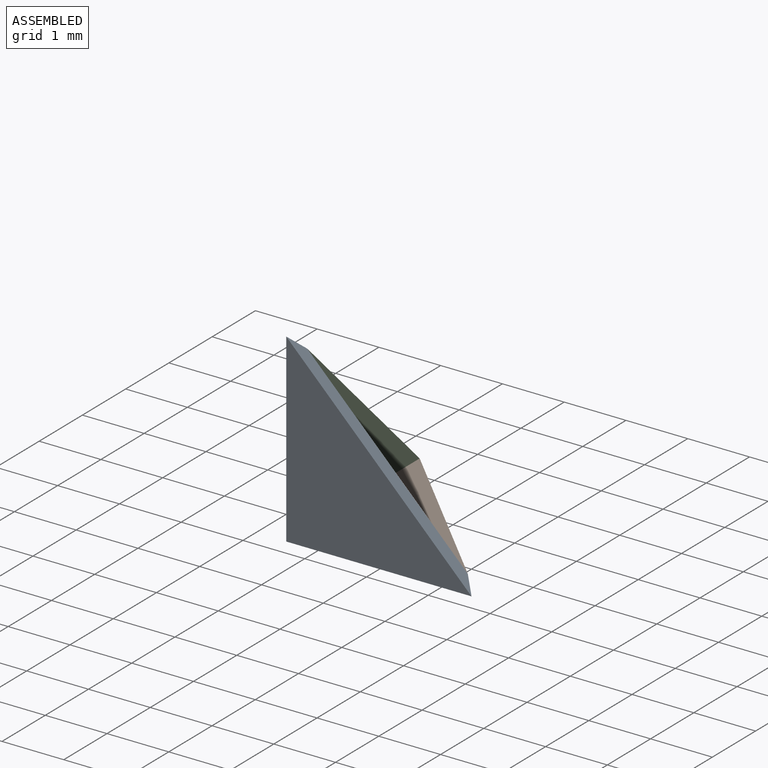
[diagram: assembled view]
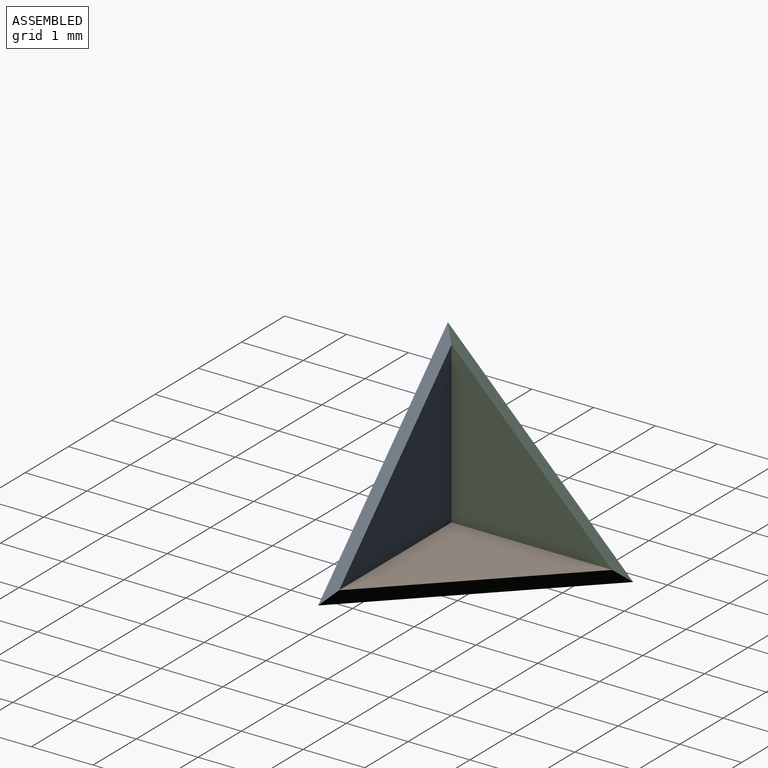
[diagram: assembled view, second angle]
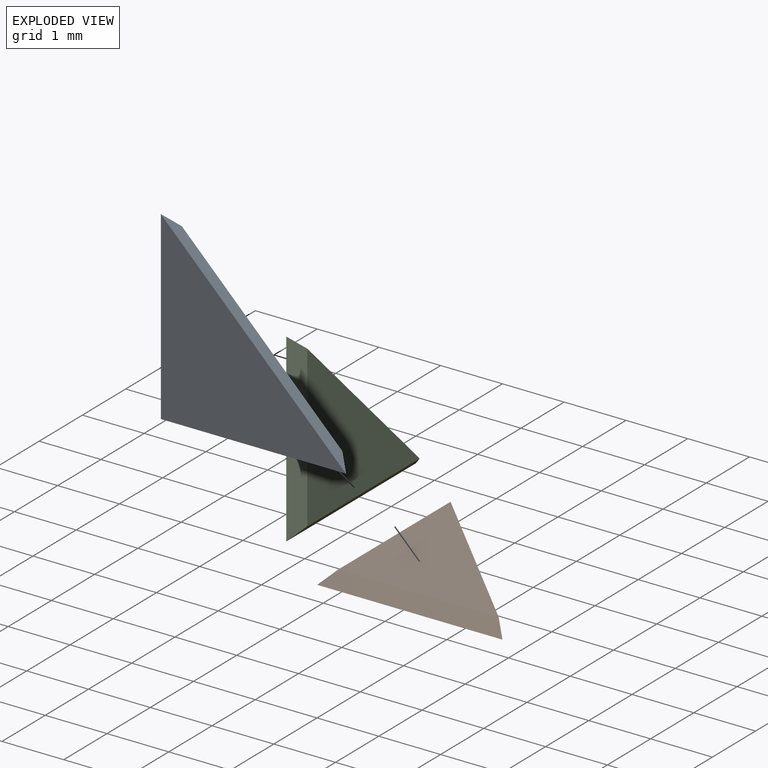
[diagram: exploded view]
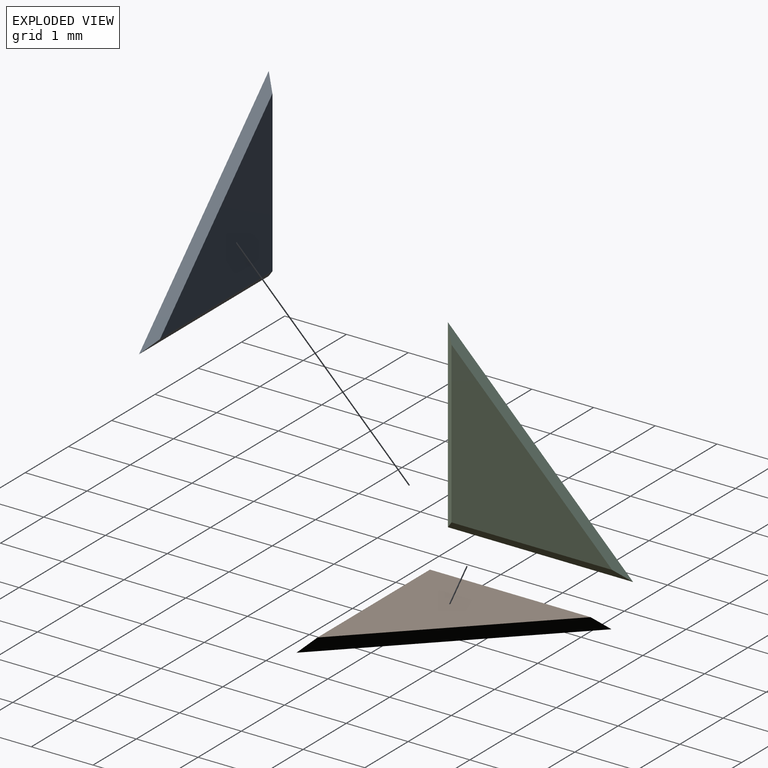
[diagram: exploded view, second angle]
ASSEMBLY  parts=3 mates=2
PART A: 5 faces, bbox 3x3x0.2 mm
  f0: plane 3x3mm, normal (0.71,0.71,0), area 0.8mm2, adj f1,f2,f3,f4
  f1: plane 2.6x2.6mm, normal (0,0,1), area 3.4mm2, adj f0,f3,f4
  f2: plane 3x3mm, normal (0,0,-1), area 4.5mm2, adj f0,f3,f4
  f3: plane 3x0.2mm, normal (0,-0.71,0.71), area 0.8mm2, adj f0,f1,f2,f4
  f4: plane 3x0.2mm, normal (-0.71,0,0.71), area 0.8mm2, adj f0,f1,f2,f3
PART B: same geometry as A
PART C: same geometry as A
PLACE A rot(axis=(-0.58,-0.58,-0.58),120deg) t=(-2.94,2.28,2.03)mm
PLACE B t=(2.2,-2.86,2.03)mm
PLACE C rot(axis=(0.58,0.58,0.58),120deg) t=(2.2,2.28,-3.11)mm
MATE fastened B.f4 <-> C.f3  axis (-0.71,0,0.71) through (2.3,5.18,2.13)mm
MATE fastened A.f4 <-> B.f3  axis (0,0.71,-0.71) through (5.1,2.38,2.13)mm
